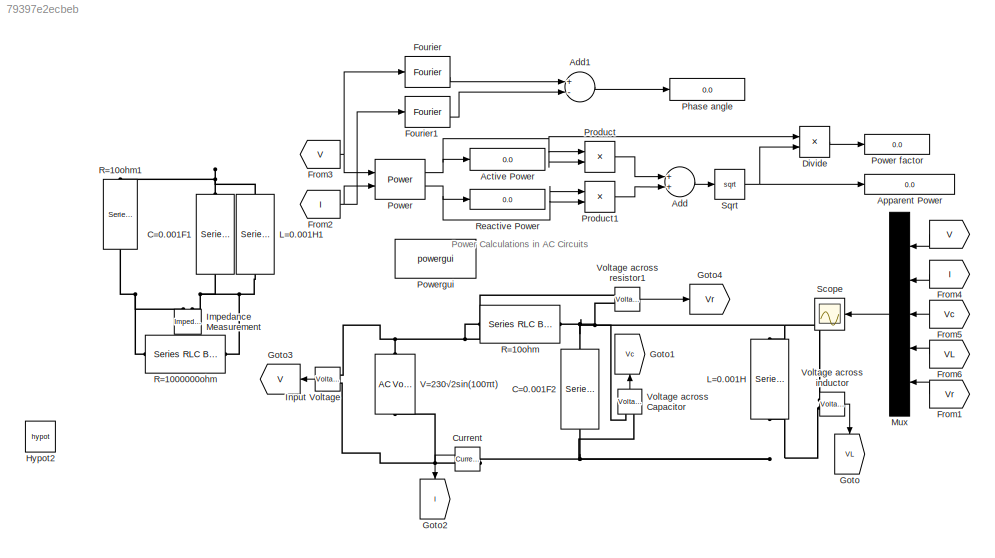
MODEL slx_79397e2ecbeb
KIND model
CONFIG AbsTol = auto
CONFIG EnableMultiTasking = off
CONFIG FixedStep = auto
CONFIG MaxStep = auto
CONFIG MinStep = auto
CONFIG RelTol = 1e-3
CONFIG SampleTimeConstraint = Unconstrained
CONFIG Solver = VariableStepAuto
CONFIG SolverName = VariableStepAuto
CONFIG StartTime = 0.0
CONFIG StopTime = 0.1
BLOCK [From]  
  GotoTag = V
BLOCK [Display] Active Power
  Decimation = 1
  Ports = [1]
BLOCK [Sum] Add
  InputSameDT = off
  OutDataTypeStr = Inherit: Inherit via internal rule
  Ports = [2, 1]
  SaturateOnIntegerOverflow = off
BLOCK [Sum] Add1
  InputSameDT = off
  Inputs = +-
  OutDataTypeStr = Inherit: Inherit via internal rule
  Ports = [2, 1]
  SaturateOnIntegerOverflow = off
BLOCK [Display] Apparent Power
  Decimation = 1
  Format = long
  Ports = [1]
BLOCK [Reference] C=0.001F1  REF=powerlib/Elements/Series RLC Branch
  Ports = [0, 0, 0, 0, 0, 1, 1]
  SourceBlock = powerlib/Elements/Series RLC Branch
  SourceProductBaseCode = PS
  SourceProductName = Simscape Power Systems
  SourceType = Series RLC Branch
BLOCK [Reference] C=0.001F2  REF=powerlib/Elements/Series RLC Branch
  Ports = [0, 0, 0, 0, 0, 1, 1]
  SourceBlock = powerlib/Elements/Series RLC Branch
  SourceProductBaseCode = PS
  SourceProductName = Simscape Power Systems
  SourceType = Series RLC Branch
BLOCK [Reference] Current   REF=powerlib/Measurements/Current Measurement
  Ports = [0, 1, 0, 0, 0, 1, 1]
  SourceBlock = powerlib/Measurements/Current Measurement
  SourceProductBaseCode = PS
  SourceProductName = Simscape Power Systems
  SourceType = Current Measurement
  UserDataPersistent = on
BLOCK [Product] Divide
  InputSameDT = off
  Inputs = */
  OutDataTypeStr = Inherit: Inherit via internal rule
  Ports = [2, 1]
  RndMeth = Floor
  SaturateOnIntegerOverflow = off
BLOCK [Reference] Fourier  REF=powerlib_meascontrol/Measurements/Fourier
  Ports = [1, 2]
  SourceBlock = powerlib_meascontrol/Measurements/Fourier
  SourceProductBaseCode = PS
  SourceProductName = Simscape Power Systems
  SourceType = Fourier
BLOCK [Reference] Fourier1  REF=powerlib_meascontrol/Measurements/Fourier
  Ports = [1, 2]
  SourceBlock = powerlib_meascontrol/Measurements/Fourier
  SourceProductBaseCode = PS
  SourceProductName = Simscape Power Systems
  SourceType = Fourier
BLOCK [From] From1
  GotoTag = Vr
BLOCK [From] From2
  GotoTag = I
BLOCK [From] From3
  GotoTag = V
BLOCK [From] From4
  GotoTag = I
BLOCK [From] From5
  GotoTag = Vc
BLOCK [From] From6
  GotoTag = VL
BLOCK [Goto] Goto
  GotoTag = VL
BLOCK [Goto] Goto1
  GotoTag = Vc
  IconDisplay = Signal name
BLOCK [Goto] Goto2
  GotoTag = I
  IconDisplay = Signal name
BLOCK [Goto] Goto3
  GotoTag = V
  IconDisplay = Signal name
BLOCK [Goto] Goto4
  GotoTag = Vr
  IconDisplay = Signal name
BLOCK [Math] Hypot2
  Operator = hypot
  Ports = [2, 1]
  RndMeth = Zero
BLOCK [Reference] Impedance Measurement  REF=powerlib/Measurements/Impedance Measurement
  Ports = [0, 0, 0, 0, 0, 2]
  SourceBlock = powerlib/Measurements/Impedance Measurement
  SourceProductBaseCode = PS
  SourceProductName = Simscape Power Systems
  SourceType = Impedance Measurement
BLOCK [Reference] Input Voltage  REF=powerlib/Measurements/Voltage Measurement
  Ports = [0, 1, 0, 0, 0, 2]
  SourceBlock = powerlib/Measurements/Voltage Measurement
  SourceProductBaseCode = PS
  SourceProductName = Simscape Power Systems
  SourceType = Voltage Measurement
  UserDataPersistent = on
BLOCK [Reference] L=0.001H  REF=powerlib/Elements/Series RLC Branch
  Ports = [0, 0, 0, 0, 0, 1, 1]
  SourceBlock = powerlib/Elements/Series RLC Branch
  SourceProductBaseCode = PS
  SourceProductName = Simscape Power Systems
  SourceType = Series RLC Branch
BLOCK [Reference] L=0.001H1  REF=powerlib/Elements/Series RLC Branch
  Ports = [0, 0, 0, 0, 0, 1, 1]
  SourceBlock = powerlib/Elements/Series RLC Branch
  SourceProductBaseCode = PS
  SourceProductName = Simscape Power Systems
  SourceType = Series RLC Branch
BLOCK [Mux] Mux
  DisplayOption = bar
  Inputs = 5
  Ports = [5, 1]
BLOCK [Display] Phase angle
  Decimation = 1
  Ports = [1]
BLOCK [Reference] Power  REF=powerlib_meascontrol/Measurements/Power
  Ports = [2, 2]
  SourceBlock = powerlib_meascontrol/Measurements/Power
  SourceProductBaseCode = PS
  SourceProductName = Simscape Power Systems
  SourceType = Power
BLOCK [Display] Power factor
  Decimation = 1
  Ports = [1]
BLOCK [Reference] Powergui  REF=powerlib/powergui
  Ports = []
  Priority = 1
  SourceBlock = powerlib/powergui
  SourceProductBaseCode = PS
  SourceProductName = Simscape Power Systems
  SourceType = PSB option menu block
BLOCK [Product] Product
  InputSameDT = off
  OutDataTypeStr = Inherit: Inherit via internal rule
  Ports = [2, 1]
  RndMeth = Floor
  SaturateOnIntegerOverflow = off
BLOCK [Product] Product1
  InputSameDT = off
  OutDataTypeStr = Inherit: Inherit via internal rule
  Ports = [2, 1]
  RndMeth = Floor
  SaturateOnIntegerOverflow = off
BLOCK [Reference] R=1000000ohm  REF=powerlib/Elements/Series RLC Branch
  Ports = [0, 0, 0, 0, 0, 1, 1]
  SourceBlock = powerlib/Elements/Series RLC Branch
  SourceProductBaseCode = PS
  SourceProductName = Simscape Power Systems
  SourceType = Series RLC Branch
BLOCK [Reference] R=10ohm  REF=powerlib/Elements/Series RLC Branch
  Ports = [0, 0, 0, 0, 0, 1, 1]
  SourceBlock = powerlib/Elements/Series RLC Branch
  SourceProductBaseCode = PS
  SourceProductName = Simscape Power Systems
  SourceType = Series RLC Branch
BLOCK [Reference] R=10ohm1  REF=powerlib/Elements/Series RLC Branch
  Ports = [0, 0, 0, 0, 0, 1, 1]
  SourceBlock = powerlib/Elements/Series RLC Branch
  SourceProductBaseCode = PS
  SourceProductName = Simscape Power Systems
  SourceType = Series RLC Branch
BLOCK [Display] Reactive Power
  Decimation = 1
  Ports = [1]
BLOCK [Scope] Scope 
  Floating = off
  NumInputPorts = 1
  Ports = [1]
  ScopeSpecificationString = Simulink.scopes.TimeScopeBlockCfg('CurrentConfiguration', extmgr.ConfigurationSet(extmgr.Configuration('Core','General UI',true),extmgr.Configuration('Core','Source UI',true),extmgr.Configuration('Sources','WiredSimulink',true,'DataLoggingVariableName','ScopeData1'),extmgr.Configuration('Visuals','Time Domain',true,'SerializedDisplays',{struct('MinYLimReal','-406.5864','MaxYLimReal','406.5864','YL...<+2306ch>
BLOCK [Sqrt] Sqrt
BLOCK [Reference] V=230√2sin(100πt)   REF=powerlib/Electrical
Sources/AC Voltage Source
  Ports = [0, 0, 0, 0, 0, 1, 1]
  SourceBlock = powerlib/Electrical\nSources/AC Voltage Source
  SourceProductBaseCode = PS
  SourceProductName = Simscape Power Systems
  SourceType = AC Voltage Source
BLOCK [Reference] Voltage across Capacitor  REF=powerlib/Measurements/Voltage Measurement
  Ports = [0, 1, 0, 0, 0, 2]
  SourceBlock = powerlib/Measurements/Voltage Measurement
  SourceProductBaseCode = PS
  SourceProductName = Simscape Power Systems
  SourceType = Voltage Measurement
  UserDataPersistent = on
BLOCK [Reference] Voltage across inductor  REF=powerlib/Measurements/Voltage Measurement
  Ports = [0, 1, 0, 0, 0, 2]
  SourceBlock = powerlib/Measurements/Voltage Measurement
  SourceProductBaseCode = PS
  SourceProductName = Simscape Power Systems
  SourceType = Voltage Measurement
  UserDataPersistent = on
BLOCK [Reference] Voltage across resistor1  REF=powerlib/Measurements/Voltage Measurement
  Ports = [0, 1, 0, 0, 0, 2]
  SourceBlock = powerlib/Measurements/Voltage Measurement
  SourceProductBaseCode = PS
  SourceProductName = Simscape Power Systems
  SourceType = Voltage Measurement
  UserDataPersistent = on
ANNOTATION (root): Power Calculations in AC Circuits
LINE  :1 -> Mux:1
LINE Add1:1 -> Phase angle:1
LINE Add:1 -> Sqrt:1
LINE Current :1 -> Goto2:1
LINE Divide:1 -> Power factor:1
LINE Fourier1:2 -> Add1:2
LINE Fourier:2 -> Add1:1
LINE From1:1 -> Mux:5
NET From2:1 -> Fourier1:1, Power:2
NET From3:1 -> Fourier:1, Power:1
LINE From4:1 -> Mux:2
LINE From5:1 -> Mux:3
LINE From6:1 -> Mux:4
LINE Input Voltage:1 -> Goto3:1
LINE Mux:1 -> Scope :1
NET Power:1 -> Active Power:1, Divide:1, Product:1, Product:2
NET Power:2 -> Product1:1, Product1:2, Reactive Power:1
LINE Product1:1 -> Add:2
LINE Product:1 -> Add:1
NET Sqrt:1 -> Apparent Power:1, Divide:2
LINE Voltage across Capacitor:1 -> Goto1:1
LINE Voltage across inductor:1 -> Goto:1
LINE Voltage across resistor1:1 -> Goto4:1
PNET net1: C=0.001F1:LConn1 -- L=0.001H1:LConn1 -- R=10ohm1:LConn1
PNET net2: C=0.001F1:RConn1 -- Impedance Measurement:LConn2 -- L=0.001H1:RConn1 -- R=1000000ohm:LConn1
PNET net3: C=0.001F2:LConn1 -- L=0.001H:LConn1 -- R=10ohm:RConn1 -- Voltage across Capacitor:LConn1 -- Voltage across inductor:LConn1 -- Voltage across resistor1:LConn2
PNET net4: C=0.001F2:RConn1 -- Current :LConn1 -- L=0.001H:RConn1 -- Voltage across Capacitor:LConn2 -- Voltage across inductor:LConn2
PNET net5: Current :RConn1 -- Input Voltage:LConn2 -- V=230√2sin(100πt) :LConn1
PNET net6: Impedance Measurement:LConn1 -- R=1000000ohm:RConn1 -- R=10ohm1:RConn1
PNET net7: Input Voltage:LConn1 -- R=10ohm:LConn1 -- V=230√2sin(100πt) :RConn1 -- Voltage across resistor1:LConn1
note: NET lines group one-source signal fan-out (src -> all destinations, sorted); 1:1 wires keep LINE; PNET lines group multi-terminal physical nets as a canonical sorted terminal list (undirected conserving connections); 2-terminal nets keep the pairwise PLINE form
